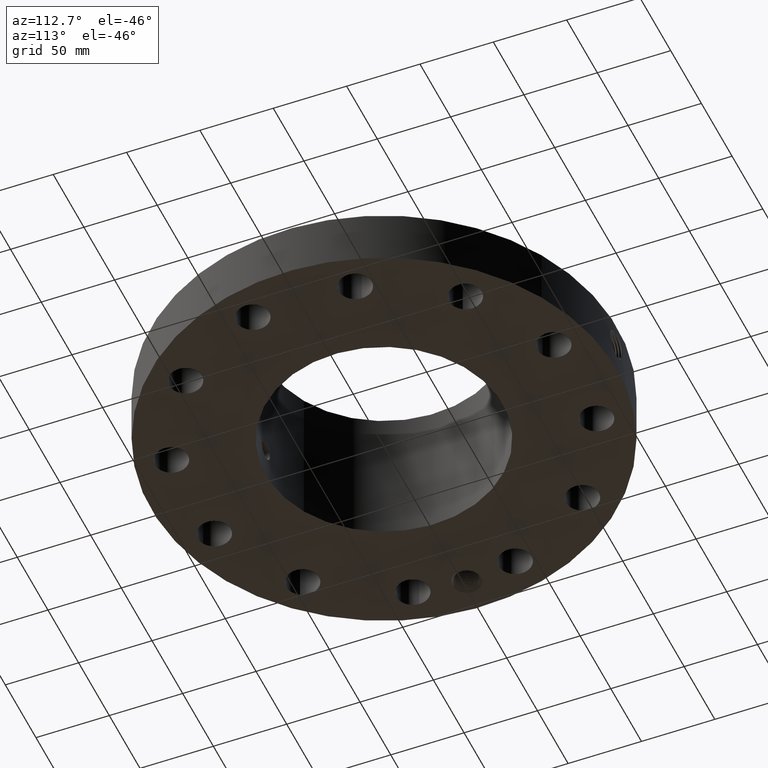
[diagram: clean part render]
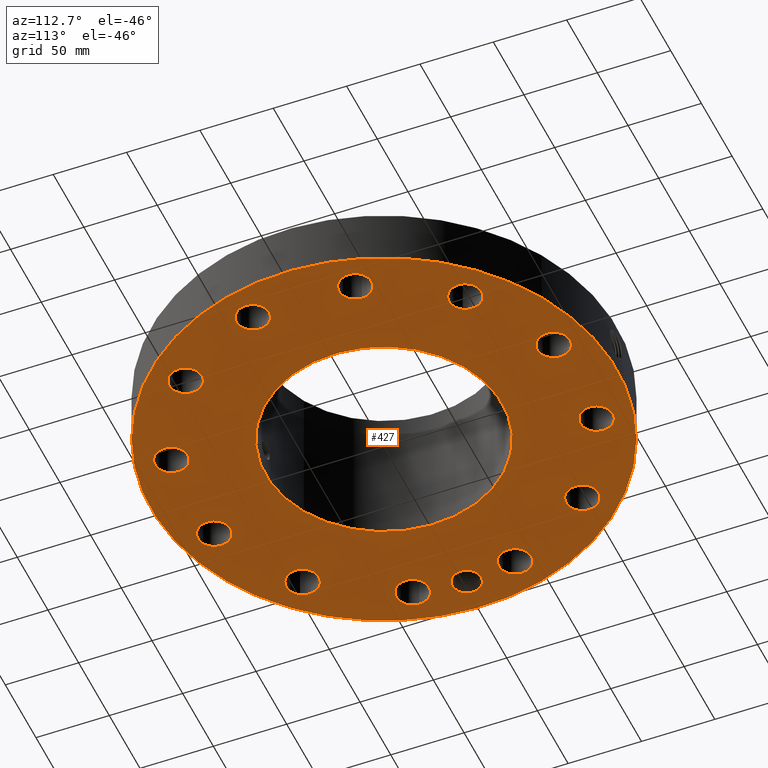
[diagram: same view with one face highlighted and labeled with its STEP entity id]
A machine part, auxiliary view. The second image highlights one B-rep face of the part: STEP entity #427.
In plain terms, the highlighted planar face has unit normal (0, 0, -1).
Its self-contained STEP definition (entity closure, byte-faithful):
#42=AXIS2_PLACEMENT_3D('Circle Axis2P3D',#40,#41,$) ;
#164=AXIS2_PLACEMENT_3D('Plane Axis2P3D',#161,#162,#163) ;
#168=AXIS2_PLACEMENT_3D('Circle Axis2P3D',#166,#167,$) ;
#177=AXIS2_PLACEMENT_3D('Circle Axis2P3D',#175,#176,$) ;
#186=AXIS2_PLACEMENT_3D('Circle Axis2P3D',#184,#185,$) ;
#195=AXIS2_PLACEMENT_3D('Circle Axis2P3D',#193,#194,$) ;
#204=AXIS2_PLACEMENT_3D('Circle Axis2P3D',#202,#203,$) ;
#213=AXIS2_PLACEMENT_3D('Circle Axis2P3D',#211,#212,$) ;
#222=AXIS2_PLACEMENT_3D('Circle Axis2P3D',#220,#221,$) ;
#231=AXIS2_PLACEMENT_3D('Circle Axis2P3D',#229,#230,$) ;
#240=AXIS2_PLACEMENT_3D('Circle Axis2P3D',#238,#239,$) ;
#249=AXIS2_PLACEMENT_3D('Circle Axis2P3D',#247,#248,$) ;
#258=AXIS2_PLACEMENT_3D('Circle Axis2P3D',#256,#257,$) ;
#267=AXIS2_PLACEMENT_3D('Circle Axis2P3D',#265,#266,$) ;
#276=AXIS2_PLACEMENT_3D('Circle Axis2P3D',#274,#275,$) ;
#285=AXIS2_PLACEMENT_3D('Circle Axis2P3D',#283,#284,$) ;
#294=AXIS2_PLACEMENT_3D('Circle Axis2P3D',#292,#293,$) ;
#303=AXIS2_PLACEMENT_3D('Circle Axis2P3D',#301,#302,$) ;
#312=AXIS2_PLACEMENT_3D('Circle Axis2P3D',#310,#311,$) ;
#321=AXIS2_PLACEMENT_3D('Circle Axis2P3D',#319,#320,$) ;
#330=AXIS2_PLACEMENT_3D('Circle Axis2P3D',#328,#329,$) ;
#339=AXIS2_PLACEMENT_3D('Circle Axis2P3D',#337,#338,$) ;
#348=AXIS2_PLACEMENT_3D('Circle Axis2P3D',#346,#347,$) ;
#357=AXIS2_PLACEMENT_3D('Circle Axis2P3D',#355,#356,$) ;
#366=AXIS2_PLACEMENT_3D('Circle Axis2P3D',#364,#365,$) ;
#375=AXIS2_PLACEMENT_3D('Circle Axis2P3D',#373,#374,$) ;
#384=AXIS2_PLACEMENT_3D('Circle Axis2P3D',#382,#383,$) ;
#393=AXIS2_PLACEMENT_3D('Circle Axis2P3D',#391,#392,$) ;
#402=AXIS2_PLACEMENT_3D('Circle Axis2P3D',#400,#401,$) ;
#411=AXIS2_PLACEMENT_3D('Circle Axis2P3D',#409,#410,$) ;
#420=AXIS2_PLACEMENT_3D('Circle Axis2P3D',#418,#419,$) ;
#40=CARTESIAN_POINT('Axis2P3D Location',(0.,0.,0.0600000000002)) ;
#44=CARTESIAN_POINT('Vertex',(-2.99640961629,-5.48489101184,0.0600000000002)) ;
#46=CARTESIAN_POINT('Vertex',(2.99640961629,5.48489101184,0.0600000000002)) ;
#161=CARTESIAN_POINT('Axis2P3D Location',(0.,3.17850000001,0.0600000000002)) ;
#166=CARTESIAN_POINT('Axis2P3D Location',(0.,0.,0.0600000000002)) ;
#175=CARTESIAN_POINT('Axis2P3D Location',(-5.31000000002,5.59482469102E-016,0.0600000000002)) ;
#179=CARTESIAN_POINT('Vertex',(-4.96938826819,-0.186077037172,0.0600000000002)) ;
#181=CARTESIAN_POINT('Vertex',(-5.65061173186,0.186077037172,0.0600000000002)) ;
#184=CARTESIAN_POINT('Axis2P3D Location',(-5.31000000002,5.59482469102E-016,0.0600000000002)) ;
#193=CARTESIAN_POINT('Axis2P3D Location',(5.12906613762,-1.3743291295,0.0600000000002)) ;
#197=CARTESIAN_POINT('Vertex',(5.51520246485,-1.58527636649,0.0600000000002)) ;
#199=CARTESIAN_POINT('Vertex',(4.74292981038,-1.16338189251,0.0600000000002)) ;
#202=CARTESIAN_POINT('Axis2P3D Location',(5.12906613762,-1.3743291295,0.0600000000002)) ;
#211=CARTESIAN_POINT('Axis2P3D Location',(0.,0.,0.0600000000002)) ;
#215=CARTESIAN_POINT('Vertex',(1.52385407446,2.78939617298,0.0600000000002)) ;
#217=CARTESIAN_POINT('Vertex',(-1.52385407446,-2.78939617298,0.0600000000002)) ;
#220=CARTESIAN_POINT('Axis2P3D Location',(0.,0.,0.0600000000002)) ;
#229=CARTESIAN_POINT('Axis2P3D Location',(3.75473700812,-3.75473700812,0.0600000000002)) ;
#233=CARTESIAN_POINT('Vertex',(3.5258067579,-3.37898317841,0.0600000000002)) ;
#235=CARTESIAN_POINT('Vertex',(3.98366725833,-4.13049083782,0.0600000000002)) ;
#238=CARTESIAN_POINT('Axis2P3D Location',(3.75473700812,-3.75473700812,0.0600000000002)) ;
#247=CARTESIAN_POINT('Axis2P3D Location',(1.3743291295,-5.12906613762,0.0600000000002)) ;
#251=CARTESIAN_POINT('Vertex',(1.36394663197,-4.68918865041,0.0600000000002)) ;
#253=CARTESIAN_POINT('Vertex',(1.38471162703,-5.56894362482,0.0600000000002)) ;
#256=CARTESIAN_POINT('Axis2P3D Location',(1.3743291295,-5.12906613762,0.0600000000002)) ;
#265=CARTESIAN_POINT('Axis2P3D Location',(-1.3743291295,-5.12906613762,0.0600000000002)) ;
#269=CARTESIAN_POINT('Vertex',(-1.16338189251,-4.74292981038,0.0600000000002)) ;
#271=CARTESIAN_POINT('Vertex',(-1.58527636649,-5.51520246485,0.0600000000002)) ;
#274=CARTESIAN_POINT('Axis2P3D Location',(-1.3743291295,-5.12906613762,0.0600000000002)) ;
#283=CARTESIAN_POINT('Axis2P3D Location',(-3.75473700812,-3.75473700812,0.0600000000002)) ;
#287=CARTESIAN_POINT('Vertex',(-3.37898317841,-3.5258067579,0.0600000000002)) ;
#289=CARTESIAN_POINT('Vertex',(-4.13049083782,-3.98366725833,0.0600000000002)) ;
#292=CARTESIAN_POINT('Axis2P3D Location',(-3.75473700812,-3.75473700812,0.0600000000002)) ;
#301=CARTESIAN_POINT('Axis2P3D Location',(-5.12906613762,-1.3743291295,0.0600000000002)) ;
#305=CARTESIAN_POINT('Vertex',(-4.68918865041,-1.36394663197,0.0600000000002)) ;
#307=CARTESIAN_POINT('Vertex',(-5.56894362482,-1.38471162703,0.0600000000002)) ;
#310=CARTESIAN_POINT('Axis2P3D Location',(-5.12906613762,-1.3743291295,0.0600000000002)) ;
#319=CARTESIAN_POINT('Axis2P3D Location',(-5.12906613762,1.3743291295,0.0600000000002)) ;
#323=CARTESIAN_POINT('Vertex',(-4.74292981038,1.16338189251,0.0600000000002)) ;
#325=CARTESIAN_POINT('Vertex',(-5.51520246485,1.58527636649,0.0600000000002)) ;
#328=CARTESIAN_POINT('Axis2P3D Location',(-5.12906613762,1.3743291295,0.0600000000002)) ;
#337=CARTESIAN_POINT('Axis2P3D Location',(-3.75473700812,3.75473700812,0.0600000000002)) ;
#341=CARTESIAN_POINT('Vertex',(-3.5258067579,3.37898317841,0.0600000000002)) ;
#343=CARTESIAN_POINT('Vertex',(-3.98366725833,4.13049083782,0.0600000000002)) ;
#346=CARTESIAN_POINT('Axis2P3D Location',(-3.75473700812,3.75473700812,0.0600000000002)) ;
#355=CARTESIAN_POINT('Axis2P3D Location',(-1.3743291295,5.12906613762,0.0600000000002)) ;
#359=CARTESIAN_POINT('Vertex',(-1.36394663197,4.68918865041,0.0600000000002)) ;
#361=CARTESIAN_POINT('Vertex',(-1.38471162703,5.56894362482,0.0600000000002)) ;
#364=CARTESIAN_POINT('Axis2P3D Location',(-1.3743291295,5.12906613762,0.0600000000002)) ;
#373=CARTESIAN_POINT('Axis2P3D Location',(1.3743291295,5.12906613762,0.0600000000002)) ;
#377=CARTESIAN_POINT('Vertex',(1.16338189251,4.74292981038,0.0600000000002)) ;
#379=CARTESIAN_POINT('Vertex',(1.58527636649,5.51520246485,0.0600000000002)) ;
#382=CARTESIAN_POINT('Axis2P3D Location',(1.3743291295,5.12906613762,0.0600000000002)) ;
#391=CARTESIAN_POINT('Axis2P3D Location',(3.75473700812,3.75473700812,0.0600000000002)) ;
#395=CARTESIAN_POINT('Vertex',(3.37898317841,3.5258067579,0.0600000000002)) ;
#397=CARTESIAN_POINT('Vertex',(4.13049083782,3.98366725833,0.0600000000002)) ;
#400=CARTESIAN_POINT('Axis2P3D Location',(3.75473700812,3.75473700812,0.0600000000002)) ;
#409=CARTESIAN_POINT('Axis2P3D Location',(5.12906613762,1.3743291295,0.0600000000002)) ;
#413=CARTESIAN_POINT('Vertex',(4.68918865041,1.36394663197,0.0600000000002)) ;
#415=CARTESIAN_POINT('Vertex',(5.56894362482,1.38471162703,0.0600000000002)) ;
#418=CARTESIAN_POINT('Axis2P3D Location',(5.12906613762,1.3743291295,0.0600000000002)) ;
#41=DIRECTION('Axis2P3D Direction',(0.,0.,-0.0393700787402)) ;
#162=DIRECTION('Axis2P3D Direction',(0.,0.,-0.0393700787402)) ;
#163=DIRECTION('Axis2P3D XDirection',(0.0393700787402,0.,0.)) ;
#167=DIRECTION('Axis2P3D Direction',(0.,0.,-0.0393700787402)) ;
#176=DIRECTION('Axis2P3D Direction',(0.,0.,-0.0393700787402)) ;
#185=DIRECTION('Axis2P3D Direction',(0.,0.,-0.0393700787402)) ;
#194=DIRECTION('Axis2P3D Direction',(0.,0.,-0.0393700787402)) ;
#203=DIRECTION('Axis2P3D Direction',(0.,0.,-0.0393700787402)) ;
#212=DIRECTION('Axis2P3D Direction',(0.,0.,-0.0393700787402)) ;
#221=DIRECTION('Axis2P3D Direction',(0.,0.,-0.0393700787402)) ;
#230=DIRECTION('Axis2P3D Direction',(0.,0.,-0.0393700787402)) ;
#239=DIRECTION('Axis2P3D Direction',(0.,0.,-0.0393700787402)) ;
#248=DIRECTION('Axis2P3D Direction',(0.,0.,-0.0393700787402)) ;
#257=DIRECTION('Axis2P3D Direction',(0.,0.,-0.0393700787402)) ;
#266=DIRECTION('Axis2P3D Direction',(0.,0.,-0.0393700787402)) ;
#275=DIRECTION('Axis2P3D Direction',(0.,0.,-0.0393700787402)) ;
#284=DIRECTION('Axis2P3D Direction',(0.,0.,-0.0393700787402)) ;
#293=DIRECTION('Axis2P3D Direction',(0.,0.,-0.0393700787402)) ;
#302=DIRECTION('Axis2P3D Direction',(0.,0.,-0.0393700787402)) ;
#311=DIRECTION('Axis2P3D Direction',(0.,0.,-0.0393700787402)) ;
#320=DIRECTION('Axis2P3D Direction',(0.,0.,-0.0393700787402)) ;
#329=DIRECTION('Axis2P3D Direction',(0.,0.,-0.0393700787402)) ;
#338=DIRECTION('Axis2P3D Direction',(0.,0.,-0.0393700787402)) ;
#347=DIRECTION('Axis2P3D Direction',(0.,0.,-0.0393700787402)) ;
#356=DIRECTION('Axis2P3D Direction',(0.,0.,-0.0393700787402)) ;
#365=DIRECTION('Axis2P3D Direction',(0.,0.,-0.0393700787402)) ;
#374=DIRECTION('Axis2P3D Direction',(0.,0.,-0.0393700787402)) ;
#383=DIRECTION('Axis2P3D Direction',(0.,0.,-0.0393700787402)) ;
#392=DIRECTION('Axis2P3D Direction',(0.,0.,-0.0393700787402)) ;
#401=DIRECTION('Axis2P3D Direction',(0.,0.,-0.0393700787402)) ;
#410=DIRECTION('Axis2P3D Direction',(0.,0.,-0.0393700787402)) ;
#419=DIRECTION('Axis2P3D Direction',(0.,0.,-0.0393700787402)) ;
#172=ORIENTED_EDGE('',*,*,#48,.T.) ;
#173=ORIENTED_EDGE('',*,*,#170,.T.) ;
#190=ORIENTED_EDGE('',*,*,#183,.F.) ;
#191=ORIENTED_EDGE('',*,*,#188,.F.) ;
#208=ORIENTED_EDGE('',*,*,#201,.F.) ;
#209=ORIENTED_EDGE('',*,*,#206,.F.) ;
#226=ORIENTED_EDGE('',*,*,#219,.F.) ;
#227=ORIENTED_EDGE('',*,*,#224,.F.) ;
#244=ORIENTED_EDGE('',*,*,#237,.F.) ;
#245=ORIENTED_EDGE('',*,*,#242,.F.) ;
#262=ORIENTED_EDGE('',*,*,#255,.F.) ;
#263=ORIENTED_EDGE('',*,*,#260,.F.) ;
#280=ORIENTED_EDGE('',*,*,#273,.F.) ;
#281=ORIENTED_EDGE('',*,*,#278,.F.) ;
#298=ORIENTED_EDGE('',*,*,#291,.F.) ;
#299=ORIENTED_EDGE('',*,*,#296,.F.) ;
#316=ORIENTED_EDGE('',*,*,#309,.F.) ;
#317=ORIENTED_EDGE('',*,*,#314,.F.) ;
#334=ORIENTED_EDGE('',*,*,#327,.F.) ;
#335=ORIENTED_EDGE('',*,*,#332,.F.) ;
#352=ORIENTED_EDGE('',*,*,#345,.F.) ;
#353=ORIENTED_EDGE('',*,*,#350,.F.) ;
#370=ORIENTED_EDGE('',*,*,#363,.F.) ;
#371=ORIENTED_EDGE('',*,*,#368,.F.) ;
#388=ORIENTED_EDGE('',*,*,#381,.F.) ;
#389=ORIENTED_EDGE('',*,*,#386,.F.) ;
#406=ORIENTED_EDGE('',*,*,#399,.F.) ;
#407=ORIENTED_EDGE('',*,*,#404,.F.) ;
#424=ORIENTED_EDGE('',*,*,#417,.F.) ;
#425=ORIENTED_EDGE('',*,*,#422,.F.) ;
#192=FACE_BOUND('',#189,.T.) ;
#210=FACE_BOUND('',#207,.T.) ;
#228=FACE_BOUND('',#225,.T.) ;
#246=FACE_BOUND('',#243,.T.) ;
#264=FACE_BOUND('',#261,.T.) ;
#282=FACE_BOUND('',#279,.T.) ;
#300=FACE_BOUND('',#297,.T.) ;
#318=FACE_BOUND('',#315,.T.) ;
#336=FACE_BOUND('',#333,.T.) ;
#354=FACE_BOUND('',#351,.T.) ;
#372=FACE_BOUND('',#369,.T.) ;
#390=FACE_BOUND('',#387,.T.) ;
#408=FACE_BOUND('',#405,.T.) ;
#426=FACE_BOUND('',#423,.T.) ;
#427=ADVANCED_FACE('PartBody',(#174,#192,#210,#228,#246,#264,#282,#300,#318,#336,#354,#372,#390,#408,#426),#165,.T.) ;
#43=CIRCLE('generated circle',#42,6.25000000003) ;
#169=CIRCLE('generated circle',#168,6.25000000003) ;
#178=CIRCLE('generated circle',#177,0.388125000002) ;
#187=CIRCLE('generated circle',#186,0.388125000002) ;
#196=CIRCLE('generated circle',#195,0.440000000002) ;
#205=CIRCLE('generated circle',#204,0.440000000002) ;
#214=CIRCLE('generated circle',#213,3.17850000001) ;
#223=CIRCLE('generated circle',#222,3.17850000001) ;
#232=CIRCLE('generated circle',#231,0.440000000002) ;
#241=CIRCLE('generated circle',#240,0.440000000002) ;
#250=CIRCLE('generated circle',#249,0.440000000002) ;
#259=CIRCLE('generated circle',#258,0.440000000002) ;
#268=CIRCLE('generated circle',#267,0.440000000002) ;
#277=CIRCLE('generated circle',#276,0.440000000002) ;
#286=CIRCLE('generated circle',#285,0.440000000002) ;
#295=CIRCLE('generated circle',#294,0.440000000002) ;
#304=CIRCLE('generated circle',#303,0.440000000002) ;
#313=CIRCLE('generated circle',#312,0.440000000002) ;
#322=CIRCLE('generated circle',#321,0.440000000002) ;
#331=CIRCLE('generated circle',#330,0.440000000002) ;
#340=CIRCLE('generated circle',#339,0.440000000002) ;
#349=CIRCLE('generated circle',#348,0.440000000002) ;
#358=CIRCLE('generated circle',#357,0.440000000002) ;
#367=CIRCLE('generated circle',#366,0.440000000002) ;
#376=CIRCLE('generated circle',#375,0.440000000002) ;
#385=CIRCLE('generated circle',#384,0.440000000002) ;
#394=CIRCLE('generated circle',#393,0.440000000002) ;
#403=CIRCLE('generated circle',#402,0.440000000002) ;
#412=CIRCLE('generated circle',#411,0.440000000002) ;
#421=CIRCLE('generated circle',#420,0.440000000002) ;
#48=EDGE_CURVE('',#45,#47,#43,.T.) ;
#170=EDGE_CURVE('',#47,#45,#169,.T.) ;
#183=EDGE_CURVE('',#180,#182,#178,.T.) ;
#188=EDGE_CURVE('',#182,#180,#187,.T.) ;
#201=EDGE_CURVE('',#198,#200,#196,.T.) ;
#206=EDGE_CURVE('',#200,#198,#205,.T.) ;
#219=EDGE_CURVE('',#216,#218,#214,.T.) ;
#224=EDGE_CURVE('',#218,#216,#223,.T.) ;
#237=EDGE_CURVE('',#234,#236,#232,.T.) ;
#242=EDGE_CURVE('',#236,#234,#241,.T.) ;
#255=EDGE_CURVE('',#252,#254,#250,.T.) ;
#260=EDGE_CURVE('',#254,#252,#259,.T.) ;
#273=EDGE_CURVE('',#270,#272,#268,.T.) ;
#278=EDGE_CURVE('',#272,#270,#277,.T.) ;
#291=EDGE_CURVE('',#288,#290,#286,.T.) ;
#296=EDGE_CURVE('',#290,#288,#295,.T.) ;
#309=EDGE_CURVE('',#306,#308,#304,.T.) ;
#314=EDGE_CURVE('',#308,#306,#313,.T.) ;
#327=EDGE_CURVE('',#324,#326,#322,.T.) ;
#332=EDGE_CURVE('',#326,#324,#331,.T.) ;
#345=EDGE_CURVE('',#342,#344,#340,.T.) ;
#350=EDGE_CURVE('',#344,#342,#349,.T.) ;
#363=EDGE_CURVE('',#360,#362,#358,.T.) ;
#368=EDGE_CURVE('',#362,#360,#367,.T.) ;
#381=EDGE_CURVE('',#378,#380,#376,.T.) ;
#386=EDGE_CURVE('',#380,#378,#385,.T.) ;
#399=EDGE_CURVE('',#396,#398,#394,.T.) ;
#404=EDGE_CURVE('',#398,#396,#403,.T.) ;
#417=EDGE_CURVE('',#414,#416,#412,.T.) ;
#422=EDGE_CURVE('',#416,#414,#421,.T.) ;
#171=EDGE_LOOP('',(#172,#173)) ;
#189=EDGE_LOOP('',(#190,#191)) ;
#207=EDGE_LOOP('',(#208,#209)) ;
#225=EDGE_LOOP('',(#226,#227)) ;
#243=EDGE_LOOP('',(#244,#245)) ;
#261=EDGE_LOOP('',(#262,#263)) ;
#279=EDGE_LOOP('',(#280,#281)) ;
#297=EDGE_LOOP('',(#298,#299)) ;
#315=EDGE_LOOP('',(#316,#317)) ;
#333=EDGE_LOOP('',(#334,#335)) ;
#351=EDGE_LOOP('',(#352,#353)) ;
#369=EDGE_LOOP('',(#370,#371)) ;
#387=EDGE_LOOP('',(#388,#389)) ;
#405=EDGE_LOOP('',(#406,#407)) ;
#423=EDGE_LOOP('',(#424,#425)) ;
#174=FACE_OUTER_BOUND('',#171,.T.) ;
#165=PLANE('',#164) ;
#45=VERTEX_POINT('',#44) ;
#47=VERTEX_POINT('',#46) ;
#180=VERTEX_POINT('',#179) ;
#182=VERTEX_POINT('',#181) ;
#198=VERTEX_POINT('',#197) ;
#200=VERTEX_POINT('',#199) ;
#216=VERTEX_POINT('',#215) ;
#218=VERTEX_POINT('',#217) ;
#234=VERTEX_POINT('',#233) ;
#236=VERTEX_POINT('',#235) ;
#252=VERTEX_POINT('',#251) ;
#254=VERTEX_POINT('',#253) ;
#270=VERTEX_POINT('',#269) ;
#272=VERTEX_POINT('',#271) ;
#288=VERTEX_POINT('',#287) ;
#290=VERTEX_POINT('',#289) ;
#306=VERTEX_POINT('',#305) ;
#308=VERTEX_POINT('',#307) ;
#324=VERTEX_POINT('',#323) ;
#326=VERTEX_POINT('',#325) ;
#342=VERTEX_POINT('',#341) ;
#344=VERTEX_POINT('',#343) ;
#360=VERTEX_POINT('',#359) ;
#362=VERTEX_POINT('',#361) ;
#378=VERTEX_POINT('',#377) ;
#380=VERTEX_POINT('',#379) ;
#396=VERTEX_POINT('',#395) ;
#398=VERTEX_POINT('',#397) ;
#414=VERTEX_POINT('',#413) ;
#416=VERTEX_POINT('',#415) ;